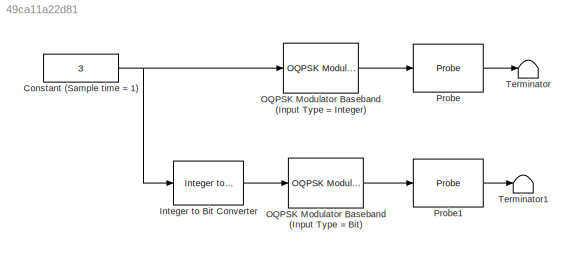
MODEL slx_49ca11a22d81
KIND model
BLOCK [Constant] Constant (Sample time  = 1)
  FramePeriod = 6
  SampleTime = 1
  Value = 3
  VectorParams1D = off
BLOCK [Reference] Integer to Bit Converter  REF=commutil2/Integer to Bit
Converter
  Ports = [1, 1]
  SourceBlock = commutil2/Integer to Bit\nConverter
  SourceType = Integer to Bit Converter
  bitOrder = MSB first
  nbits = 2
  outDtype = double
  signedInputValues = Unsigned
BLOCK [Reference] OQPSK Modulator Baseband (Input Type = Bit)  REF=commdigbbndpm3/OQPSK
Modulator
Baseband
  InType = Bit
  Ph = 0
  Ports = [1, 1]
  RateOptions = Allow multirate processing
  SourceBlock = commdigbbndpm3/OQPSK\nModulator\nBaseband
  SourceType = OQPSK Modulator Baseband
  UserDataPersistent = on
  outDtype = double
  outFracLen = 15
  outFracLenMode = Best precision
  outUDDataType = sfix(16)
  outWordLen = 16
BLOCK [Reference] OQPSK Modulator Baseband (Input Type = Integer)  REF=commdigbbndpm3/OQPSK
Modulator
Baseband
  InType = Integer
  Ph = 0
  Ports = [1, 1]
  RateOptions = Allow multirate processing
  SourceBlock = commdigbbndpm3/OQPSK\nModulator\nBaseband
  SourceType = OQPSK Modulator Baseband
  UserDataPersistent = on
  outDtype = double
  outFracLen = 15
  outFracLenMode = Best precision
  outUDDataType = sfix(16)
  outWordLen = 16
BLOCK [Probe] Probe
  Ports = [1, 1]
  ProbeComplexSignal = off
  ProbeWidth = off
BLOCK [Probe] Probe1
  Ports = [1, 1]
  ProbeComplexSignal = off
  ProbeWidth = off
BLOCK [Terminator] Terminator
BLOCK [Terminator] Terminator1
NET Constant (Sample time  = 1):1 -> Integer to Bit Converter:1, OQPSK Modulator Baseband (Input Type = Integer):1
LINE Integer to Bit Converter:1 -> OQPSK Modulator Baseband (Input Type = Bit):1
LINE OQPSK Modulator Baseband (Input Type = Bit):1 -> Probe1:1
LINE OQPSK Modulator Baseband (Input Type = Integer):1 -> Probe:1
LINE Probe1:1 -> Terminator1:1
LINE Probe:1 -> Terminator:1
note: NET lines group one-source signal fan-out (src -> all destinations, sorted); 1:1 wires keep LINE
